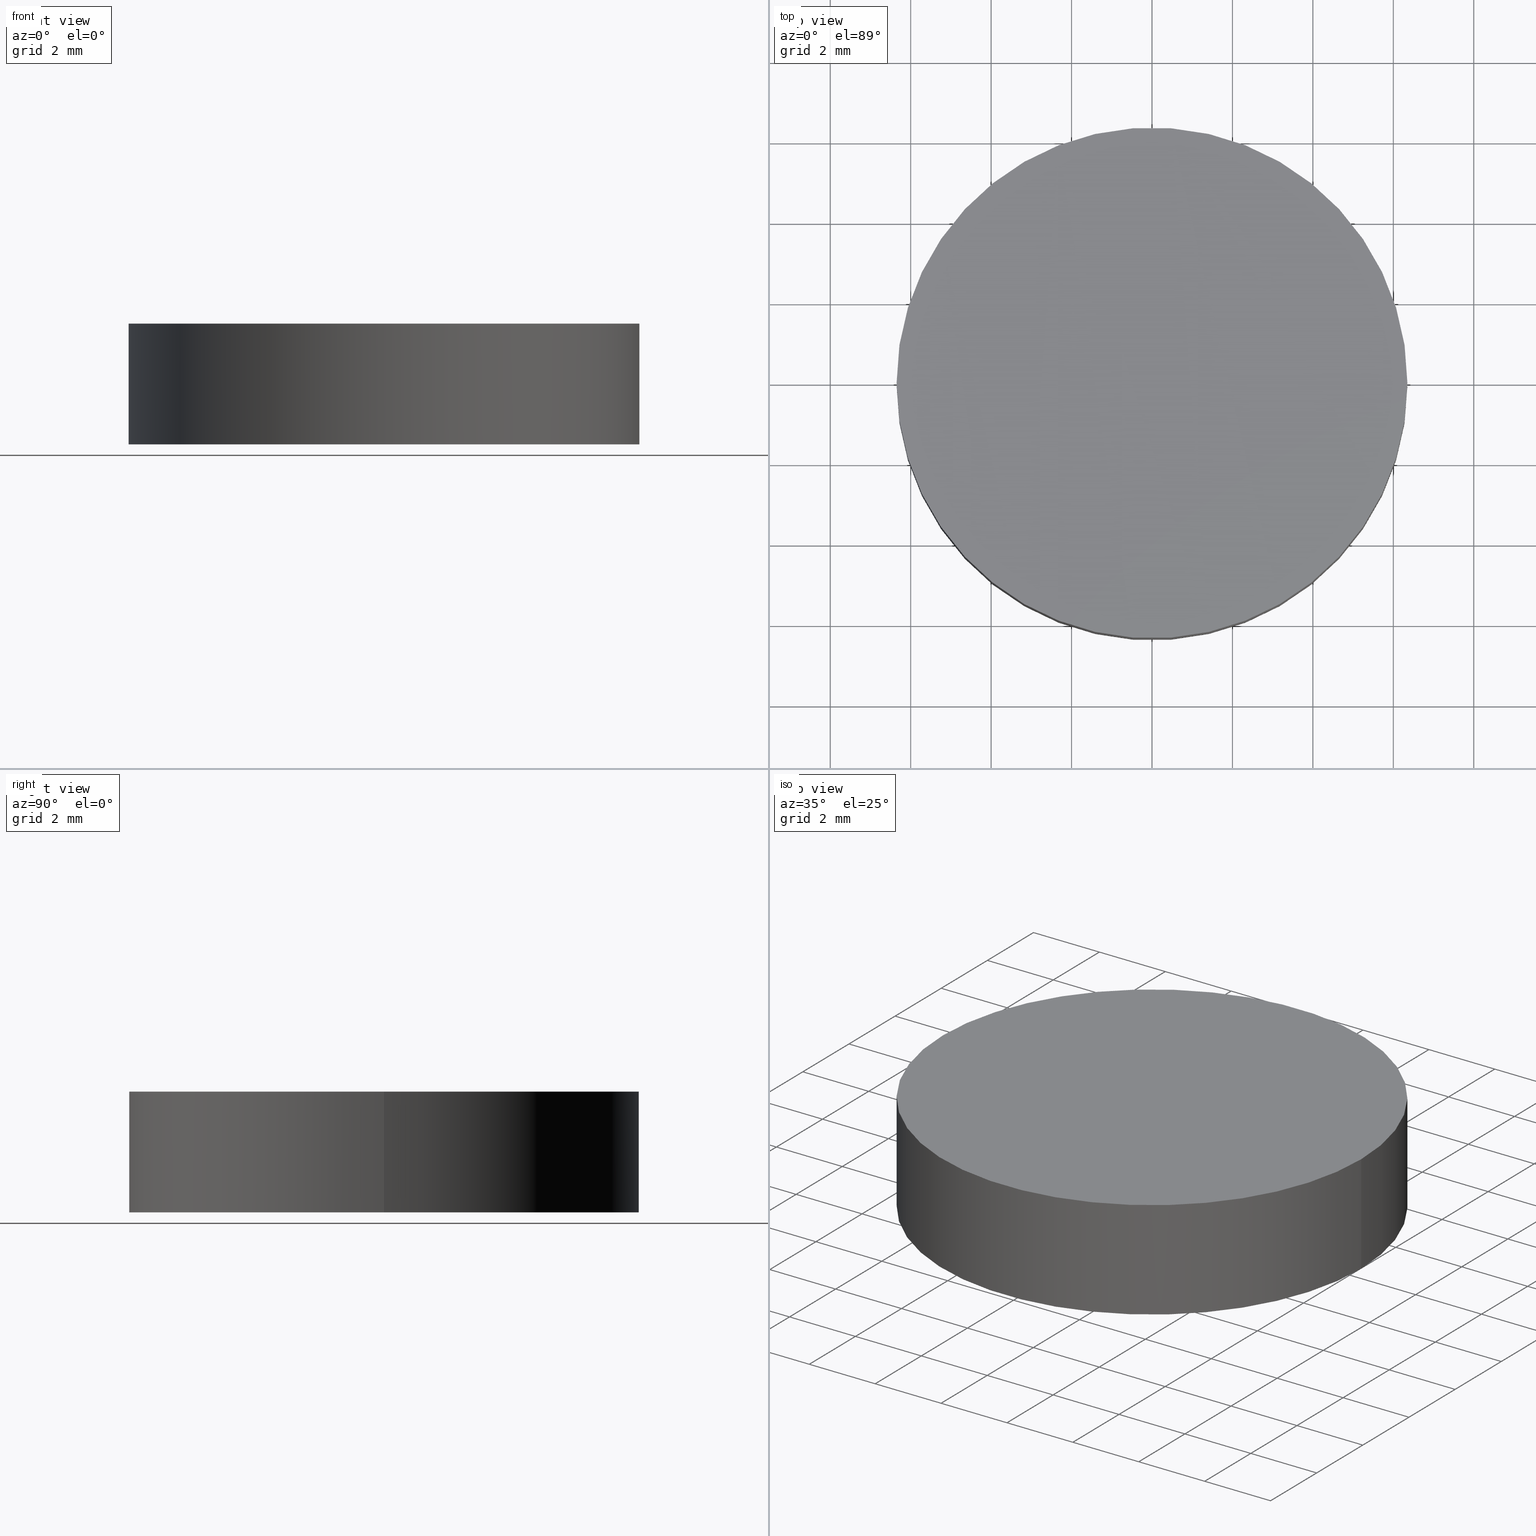
[diagram: canonical four-view strip — front | top / right | iso, engineering-drawing reading convention]
A machine part, canonical four-view strip (front | top / right | iso — engineering-drawing reading convention). The complete STEP part file that produces these views, byte-faithful:
ISO-10303-21;
HEADER;
FILE_DESCRIPTION (( 'STEP AP214' ),
    '1' );
FILE_NAME ('190152.STEP',
    '2019-07-18T06:07:09',
    ( 'user' ),
    ( '΢���й�' ),
    'SwSTEP 2.0',
    'SolidWorks 2016',
    '' );
FILE_SCHEMA (( 'AUTOMOTIVE_DESIGN' ));
ENDSEC;

DATA;
#1 = APPLICATION_CONTEXT ( 'automotive_design' ) ;
#2 = STYLED_ITEM ( 'NONE', ( #56 ), #122 ) ;
#3 =( NAMED_UNIT ( * ) PLANE_ANGLE_UNIT ( ) SI_UNIT ( $, .RADIAN. ) );
#4 = FILL_AREA_STYLE ('',( #83 ) ) ;
#5 = ORIENTED_EDGE ( 'NONE', *, *, #99, .F. ) ;
#6 = PRESENTATION_LAYER_ASSIGNMENT (  '', '', ( #2 ) ) ;
#7 = EDGE_LOOP ( 'NONE', ( #5, #45, #98, #96 ) ) ;
#8 = FACE_OUTER_BOUND ( 'NONE', #101, .T. ) ;
#9 = CARTESIAN_POINT ( 'NONE',  ( 0.0000000000000000000, 0.0000000000000000000, 3.000000000000000000 ) ) ;
#10 = PLANE ( 'NONE',  #106 ) ;
#11 = ADVANCED_BREP_SHAPE_REPRESENTATION ( '190152', ( #122, #88 ), #84 ) ;
#12 = ORIENTED_EDGE ( 'NONE', *, *, #19, .T. ) ;
#13 = PRODUCT_DEFINITION_CONTEXT ( 'detailed design', #139, 'design' ) ;
#14 = SURFACE_STYLE_FILL_AREA ( #129 ) ;
#15 = CARTESIAN_POINT ( 'NONE',  ( -6.349999999999999600, 0.0000000000000000000, 3.000000000000000000 ) ) ;
#16 = ADVANCED_FACE ( 'NONE', ( #8 ), #82, .T. ) ;
#17 = LINE ( 'NONE', #15, #28 ) ;
#18 = CARTESIAN_POINT ( 'NONE',  ( 0.0000000000000000000, 0.0000000000000000000, 0.0000000000000000000 ) ) ;
#19 = EDGE_CURVE ( 'NONE', #41, #75, #81, .T. ) ;
#20 = VERTEX_POINT ( 'NONE', #140 ) ;
#21 = CIRCLE ( 'NONE', #79, 6.349999999999999600 ) ;
#22 = DIRECTION ( 'NONE',  ( 1.000000000000000000, 0.0000000000000000000, 0.0000000000000000000 ) ) ;
#23 = AXIS2_PLACEMENT_3D ( 'NONE', #70, #36, #34 ) ;
#24 = COLOUR_RGB ( '',1.000000000000000000, 1.000000000000000000, 1.000000000000000000 ) ;
#25 = EDGE_CURVE ( 'NONE', #20, #115, #132, .T. ) ;
#26 = DIRECTION ( 'NONE',  ( 0.0000000000000000000, 0.0000000000000000000, 1.000000000000000000 ) ) ;
#27 =( GEOMETRIC_REPRESENTATION_CONTEXT ( 3 ) GLOBAL_UNCERTAINTY_ASSIGNED_CONTEXT ( ( #128 ) ) GLOBAL_UNIT_ASSIGNED_CONTEXT ( ( #63, #123, #35 ) ) REPRESENTATION_CONTEXT ( 'NONE', 'WORKASPACE' ) );
#28 = VECTOR ( 'NONE', #78, 1000.000000000000000 ) ;
#29 = FACE_OUTER_BOUND ( 'NONE', #7, .T. ) ;
#30 = CARTESIAN_POINT ( 'NONE',  ( -6.349999999999999600, 0.0000000000000000000, 0.0000000000000000000 ) ) ;
#31 = PRESENTATION_STYLE_ASSIGNMENT (( #134 ) ) ;
#32 = CIRCLE ( 'NONE', #119, 6.349999999999999600 ) ;
#33 = DIRECTION ( 'NONE',  ( 1.000000000000000000, 0.0000000000000000000, -0.0000000000000000000 ) ) ;
#34 = DIRECTION ( 'NONE',  ( -1.000000000000000000, 0.0000000000000000000, 0.0000000000000000000 ) ) ;
#35 =( NAMED_UNIT ( * ) SI_UNIT ( $, .STERADIAN. ) SOLID_ANGLE_UNIT ( ) );
#36 = DIRECTION ( 'NONE',  ( -0.0000000000000000000, -0.0000000000000000000, -1.000000000000000000 ) ) ;
#37 = ORIENTED_EDGE ( 'NONE', *, *, #19, .F. ) ;
#38 = UNCERTAINTY_MEASURE_WITH_UNIT (LENGTH_MEASURE( 1.000000000000000100E-005 ), #110, 'distance_accuracy_value', 'NONE');
#39 = AXIS2_PLACEMENT_3D ( 'NONE', #9, #58, #118 ) ;
#40 = STYLED_ITEM ( 'NONE', ( #31 ), #11 ) ;
#41 = VERTEX_POINT ( 'NONE', #49 ) ;
#42 = MECHANICAL_DESIGN_GEOMETRIC_PRESENTATION_REPRESENTATION (  '', ( #2 ), #27 ) ;
#43 = APPLICATION_PROTOCOL_DEFINITION ( 'draft international standard', 'automotive_design', 1998, #1 ) ;
#44 = DIRECTION ( 'NONE',  ( 1.000000000000000000, 0.0000000000000000000, 0.0000000000000000000 ) ) ;
#45 = ORIENTED_EDGE ( 'NONE', *, *, #86, .F. ) ;
#46 = CARTESIAN_POINT ( 'NONE',  ( 0.0000000000000000000, 0.0000000000000000000, 0.0000000000000000000 ) ) ;
#47 =( NAMED_UNIT ( * ) PLANE_ANGLE_UNIT ( ) SI_UNIT ( $, .RADIAN. ) );
#48 = AXIS2_PLACEMENT_3D ( 'NONE', #108, #93, #59 ) ;
#49 = CARTESIAN_POINT ( 'NONE',  ( 6.349999999999999600, 7.776507174585692200E-016, 3.000000000000000000 ) ) ;
#50 = PRESENTATION_LAYER_ASSIGNMENT (  '', '', ( #40 ) ) ;
#51 = DIRECTION ( 'NONE',  ( 0.0000000000000000000, 0.0000000000000000000, 1.000000000000000000 ) ) ;
#52 = COLOUR_RGB ( '',1.000000000000000000, 1.000000000000000000, 1.000000000000000000 ) ;
#53 = CARTESIAN_POINT ( 'NONE',  ( 6.349999999999999600, 7.776507174585692200E-016, 3.000000000000000000 ) ) ;
#54 = DIRECTION ( 'NONE',  ( 0.0000000000000000000, 0.0000000000000000000, 1.000000000000000000 ) ) ;
#55 = FILL_AREA_STYLE_COLOUR ( '', #24 ) ;
#56 = PRESENTATION_STYLE_ASSIGNMENT (( #136 ) ) ;
#57 = MECHANICAL_DESIGN_GEOMETRIC_PRESENTATION_REPRESENTATION (  '', ( #40 ), #65 ) ;
#58 = DIRECTION ( 'NONE',  ( -0.0000000000000000000, -0.0000000000000000000, -1.000000000000000000 ) ) ;
#59 = DIRECTION ( 'NONE',  ( 1.000000000000000000, 0.0000000000000000000, -0.0000000000000000000 ) ) ;
#60 = FACE_OUTER_BOUND ( 'NONE', #66, .T. ) ;
#61 = ADVANCED_FACE ( 'NONE', ( #29 ), #113, .T. ) ;
#62 =( LENGTH_UNIT ( ) NAMED_UNIT ( * ) SI_UNIT ( .MILLI., .METRE. ) );
#63 =( LENGTH_UNIT ( ) NAMED_UNIT ( * ) SI_UNIT ( .MILLI., .METRE. ) );
#64 = AXIS2_PLACEMENT_3D ( 'NONE', #125, #91, #44 ) ;
#65 =( GEOMETRIC_REPRESENTATION_CONTEXT ( 3 ) GLOBAL_UNCERTAINTY_ASSIGNED_CONTEXT ( ( #67 ) ) GLOBAL_UNIT_ASSIGNED_CONTEXT ( ( #62, #3, #138 ) ) REPRESENTATION_CONTEXT ( 'NONE', 'WORKASPACE' ) );
#66 = EDGE_LOOP ( 'NONE', ( #37, #124, #126, #121 ) ) ;
#67 = UNCERTAINTY_MEASURE_WITH_UNIT (LENGTH_MEASURE( 1.000000000000000100E-005 ), #62, 'distance_accuracy_value', 'NONE');
#68 = PRODUCT ( '190152', '190152', '', ( #77 ) ) ;
#69 = APPLICATION_PROTOCOL_DEFINITION ( 'draft international standard', 'automotive_design', 1998, #139 ) ;
#70 = CARTESIAN_POINT ( 'NONE',  ( 0.0000000000000000000, 0.0000000000000000000, 3.000000000000000000 ) ) ;
#71 = ORIENTED_EDGE ( 'NONE', *, *, #94, .F. ) ;
#72 = ADVANCED_FACE ( 'NONE', ( #137 ), #10, .F. ) ;
#73 = SURFACE_SIDE_STYLE ('',( #14 ) ) ;
#74 = SURFACE_SIDE_STYLE ('',( #135 ) ) ;
#75 = VERTEX_POINT ( 'NONE', #109 ) ;
#76 = ORIENTED_EDGE ( 'NONE', *, *, #86, .T. ) ;
#77 = PRODUCT_CONTEXT ( 'NONE', #1, 'mechanical' ) ;
#78 = DIRECTION ( 'NONE',  ( -0.0000000000000000000, -0.0000000000000000000, -1.000000000000000000 ) ) ;
#79 = AXIS2_PLACEMENT_3D ( 'NONE', #18, #51, #114 ) ;
#80 = DIRECTION ( 'NONE',  ( -0.0000000000000000000, -0.0000000000000000000, -1.000000000000000000 ) ) ;
#81 = CIRCLE ( 'NONE', #64, 6.349999999999999600 ) ;
#82 = PLANE ( 'NONE',  #48 ) ;
#83 = FILL_AREA_STYLE_COLOUR ( '', #52 ) ;
#84 =( GEOMETRIC_REPRESENTATION_CONTEXT ( 3 ) GLOBAL_UNCERTAINTY_ASSIGNED_CONTEXT ( ( #38 ) ) GLOBAL_UNIT_ASSIGNED_CONTEXT ( ( #110, #47, #133 ) ) REPRESENTATION_CONTEXT ( 'NONE', 'WORKASPACE' ) );
#85 = LINE ( 'NONE', #53, #90 ) ;
#86 = EDGE_CURVE ( 'NONE', #75, #41, #32, .T. ) ;
#87 = AXIS2_PLACEMENT_3D ( 'NONE', #100, #26, #120 ) ;
#88 = AXIS2_PLACEMENT_3D ( 'NONE', #103, #54, #22 ) ;
#89 = CLOSED_SHELL ( 'NONE', ( #112, #61, #16, #72 ) ) ;
#90 = VECTOR ( 'NONE', #80, 1000.000000000000000 ) ;
#91 = DIRECTION ( 'NONE',  ( 0.0000000000000000000, 0.0000000000000000000, 1.000000000000000000 ) ) ;
#92 = EDGE_LOOP ( 'NONE', ( #71, #105 ) ) ;
#93 = DIRECTION ( 'NONE',  ( 0.0000000000000000000, 0.0000000000000000000, 1.000000000000000000 ) ) ;
#94 = EDGE_CURVE ( 'NONE', #115, #20, #21, .T. ) ;
#95 = PRODUCT_DEFINITION ( 'δ֪', '', #102, #13 ) ;
#96 = ORIENTED_EDGE ( 'NONE', *, *, #94, .T. ) ;
#97 = PRODUCT_DEFINITION_SHAPE ( 'NONE', 'NONE',  #95 ) ;
#98 = ORIENTED_EDGE ( 'NONE', *, *, #127, .T. ) ;
#99 = EDGE_CURVE ( 'NONE', #41, #20, #85, .T. ) ;
#100 = CARTESIAN_POINT ( 'NONE',  ( 0.0000000000000000000, 0.0000000000000000000, 0.0000000000000000000 ) ) ;
#101 = EDGE_LOOP ( 'NONE', ( #76, #12 ) ) ;
#102 = PRODUCT_DEFINITION_FORMATION_WITH_SPECIFIED_SOURCE ( '�κ�', '', #68, .NOT_KNOWN. ) ;
#103 = CARTESIAN_POINT ( 'NONE',  ( 0.0000000000000000000, 0.0000000000000000000, 0.0000000000000000000 ) ) ;
#104 = CYLINDRICAL_SURFACE ( 'NONE', #23, 6.349999999999999600 ) ;
#105 = ORIENTED_EDGE ( 'NONE', *, *, #25, .F. ) ;
#106 = AXIS2_PLACEMENT_3D ( 'NONE', #46, #116, #33 ) ;
#107 = PRODUCT_RELATED_PRODUCT_CATEGORY ( 'part', '', ( #68 ) ) ;
#108 = CARTESIAN_POINT ( 'NONE',  ( 0.0000000000000000000, 0.0000000000000000000, 3.000000000000000000 ) ) ;
#109 = CARTESIAN_POINT ( 'NONE',  ( -6.349999999999999600, 0.0000000000000000000, 3.000000000000000000 ) ) ;
#110 =( LENGTH_UNIT ( ) NAMED_UNIT ( * ) SI_UNIT ( .MILLI., .METRE. ) );
#111 = CARTESIAN_POINT ( 'NONE',  ( 0.0000000000000000000, 0.0000000000000000000, 3.000000000000000000 ) ) ;
#112 = ADVANCED_FACE ( 'NONE', ( #60 ), #104, .T. ) ;
#113 = CYLINDRICAL_SURFACE ( 'NONE', #39, 6.349999999999999600 ) ;
#114 = DIRECTION ( 'NONE',  ( 1.000000000000000000, 0.0000000000000000000, 0.0000000000000000000 ) ) ;
#115 = VERTEX_POINT ( 'NONE', #30 ) ;
#116 = DIRECTION ( 'NONE',  ( 0.0000000000000000000, 0.0000000000000000000, 1.000000000000000000 ) ) ;
#117 = SHAPE_DEFINITION_REPRESENTATION ( #97, #11 ) ;
#118 = DIRECTION ( 'NONE',  ( -1.000000000000000000, 0.0000000000000000000, 0.0000000000000000000 ) ) ;
#119 = AXIS2_PLACEMENT_3D ( 'NONE', #111, #130, #131 ) ;
#120 = DIRECTION ( 'NONE',  ( 1.000000000000000000, 0.0000000000000000000, 0.0000000000000000000 ) ) ;
#121 = ORIENTED_EDGE ( 'NONE', *, *, #127, .F. ) ;
#122 = MANIFOLD_SOLID_BREP ( '͹̨-����1', #89 ) ;
#123 =( NAMED_UNIT ( * ) PLANE_ANGLE_UNIT ( ) SI_UNIT ( $, .RADIAN. ) );
#124 = ORIENTED_EDGE ( 'NONE', *, *, #99, .T. ) ;
#125 = CARTESIAN_POINT ( 'NONE',  ( 0.0000000000000000000, 0.0000000000000000000, 3.000000000000000000 ) ) ;
#126 = ORIENTED_EDGE ( 'NONE', *, *, #25, .T. ) ;
#127 = EDGE_CURVE ( 'NONE', #75, #115, #17, .T. ) ;
#128 = UNCERTAINTY_MEASURE_WITH_UNIT (LENGTH_MEASURE( 1.000000000000000100E-005 ), #63, 'distance_accuracy_value', 'NONE');
#129 = FILL_AREA_STYLE ('',( #55 ) ) ;
#130 = DIRECTION ( 'NONE',  ( 0.0000000000000000000, 0.0000000000000000000, 1.000000000000000000 ) ) ;
#131 = DIRECTION ( 'NONE',  ( 1.000000000000000000, 0.0000000000000000000, 0.0000000000000000000 ) ) ;
#132 = CIRCLE ( 'NONE', #87, 6.349999999999999600 ) ;
#133 =( NAMED_UNIT ( * ) SI_UNIT ( $, .STERADIAN. ) SOLID_ANGLE_UNIT ( ) );
#134 = SURFACE_STYLE_USAGE ( .BOTH. , #73 ) ;
#135 = SURFACE_STYLE_FILL_AREA ( #4 ) ;
#136 = SURFACE_STYLE_USAGE ( .BOTH. , #74 ) ;
#137 = FACE_OUTER_BOUND ( 'NONE', #92, .T. ) ;
#138 =( NAMED_UNIT ( * ) SI_UNIT ( $, .STERADIAN. ) SOLID_ANGLE_UNIT ( ) );
#139 = APPLICATION_CONTEXT ( 'automotive_design' ) ;
#140 = CARTESIAN_POINT ( 'NONE',  ( 6.349999999999999600, 7.776507174585692200E-016, 0.0000000000000000000 ) ) ;
ENDSEC;
END-ISO-10303-21;
